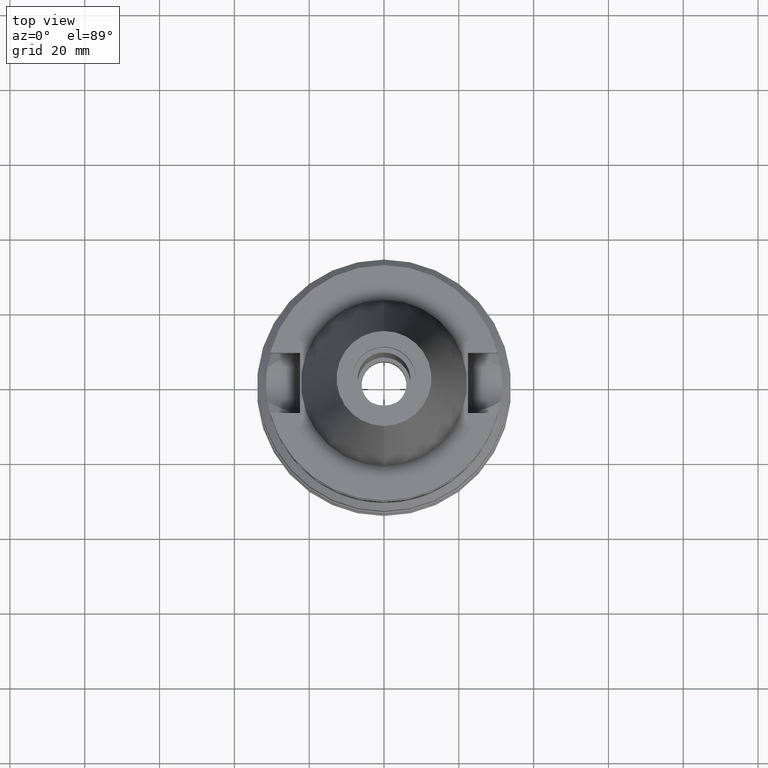
[diagram: clean part render]
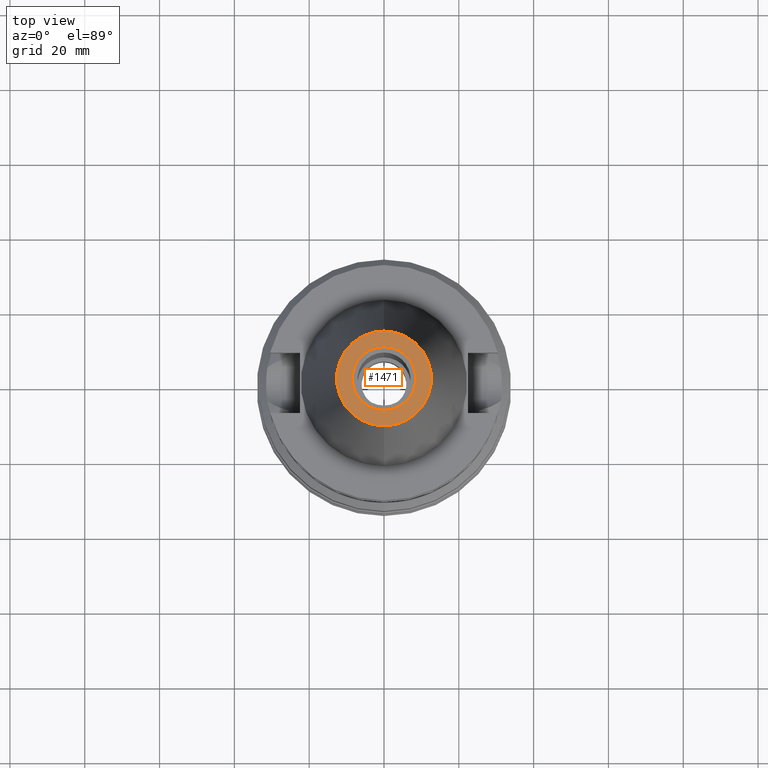
[diagram: same view with one face highlighted and labeled with its STEP entity id]
A machine part, top view. The second image highlights one B-rep face of the part: STEP entity #1471.
In plain terms, the highlighted planar face has unit normal (0, 0, -1).
Its self-contained STEP definition (entity closure, byte-faithful):
#17=CARTESIAN_POINT('',(0.E0,1.625106302469E-14,6.54E1));
#18=DIRECTION('',(0.E0,0.E0,-1.E0));
#19=DIRECTION('',(0.E0,-1.E0,0.E0));
#20=AXIS2_PLACEMENT_3D('',#17,#18,#19);
#26=CARTESIAN_POINT('',(0.E0,1.625106302469E-14,6.54E1));
#27=DIRECTION('',(0.E0,0.E0,-1.E0));
#28=DIRECTION('',(0.E0,1.E0,0.E0));
#29=AXIS2_PLACEMENT_3D('',#26,#27,#28);
#34=CARTESIAN_POINT('',(0.E0,2.129905713077E-14,6.54E1));
#35=DIRECTION('',(0.E0,0.E0,1.E0));
#36=DIRECTION('',(0.E0,-1.E0,0.E0));
#37=AXIS2_PLACEMENT_3D('',#34,#35,#36);
#42=CARTESIAN_POINT('',(0.E0,2.129905713077E-14,6.54E1));
#43=DIRECTION('',(0.E0,0.E0,1.E0));
#44=DIRECTION('',(0.E0,1.E0,0.E0));
#45=AXIS2_PLACEMENT_3D('',#42,#43,#44);
#1265=CARTESIAN_POINT('',(0.E0,-1.268766899430E1,6.54E1));
#1266=CARTESIAN_POINT('',(0.E0,1.268766899430E1,6.54E1));
#1267=VERTEX_POINT('',#1265);
#1268=VERTEX_POINT('',#1266);
#1269=CARTESIAN_POINT('',(0.E0,-8.5E0,6.54E1));
#1270=CARTESIAN_POINT('',(0.E0,8.5E0,6.54E1));
#1271=VERTEX_POINT('',#1269);
#1272=VERTEX_POINT('',#1270);
#1454=CARTESIAN_POINT('',(0.E0,2.025565805790E-14,6.54E1));
#1455=DIRECTION('',(0.E0,0.E0,-1.E0));
#1456=DIRECTION('',(0.E0,-1.E0,0.E0));
#1457=AXIS2_PLACEMENT_3D('',#1454,#1455,#1456);
#1458=PLANE('',#1457);
#1460=ORIENTED_EDGE('',*,*,#1459,.T.);
#1462=ORIENTED_EDGE('',*,*,#1461,.T.);
#1463=EDGE_LOOP('',(#1460,#1462));
#1464=FACE_OUTER_BOUND('',#1463,.F.);
#1466=ORIENTED_EDGE('',*,*,#1465,.T.);
#1468=ORIENTED_EDGE('',*,*,#1467,.T.);
#1469=EDGE_LOOP('',(#1466,#1468));
#1470=FACE_BOUND('',#1469,.F.);
#21=CIRCLE('',#20,1.268766899430E1);
#30=CIRCLE('',#29,1.268766899430E1);
#38=CIRCLE('',#37,8.5E0);
#46=CIRCLE('',#45,8.5E0);
#1459=EDGE_CURVE('',#1267,#1268,#21,.T.);
#1461=EDGE_CURVE('',#1268,#1267,#30,.T.);
#1465=EDGE_CURVE('',#1271,#1272,#38,.T.);
#1467=EDGE_CURVE('',#1272,#1271,#46,.T.);
#1471=ADVANCED_FACE('',(#1464,#1470),#1458,.F.);